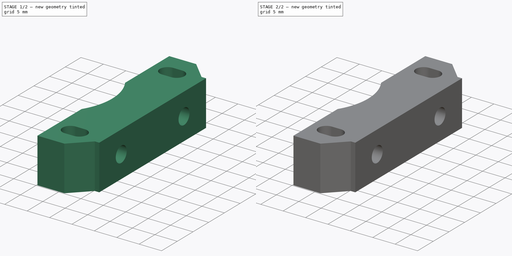
[diagram: build sequence overview — one tinted view per stage of 2, left to right]
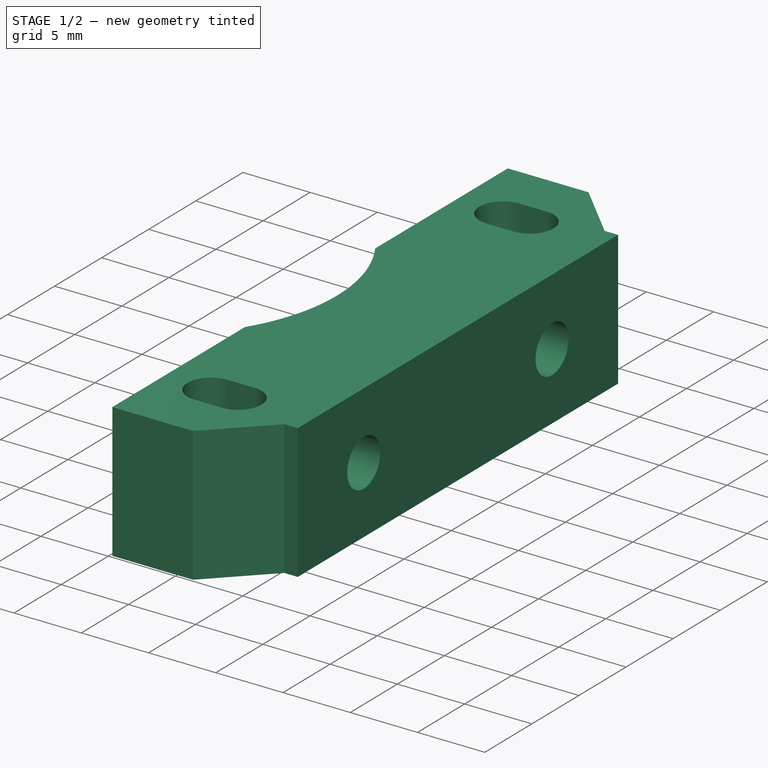
[diagram: stage 1 of 2 — iso view after this stage's code; geometry added in this stage tinted green]
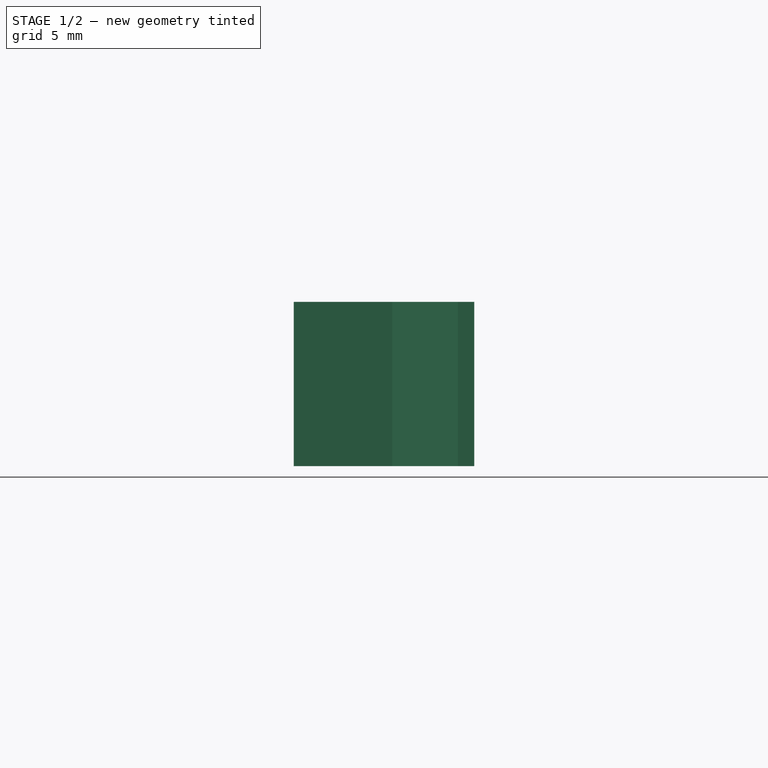
[diagram: stage 1 of 2 — front view after this stage's code; geometry added in this stage tinted green]
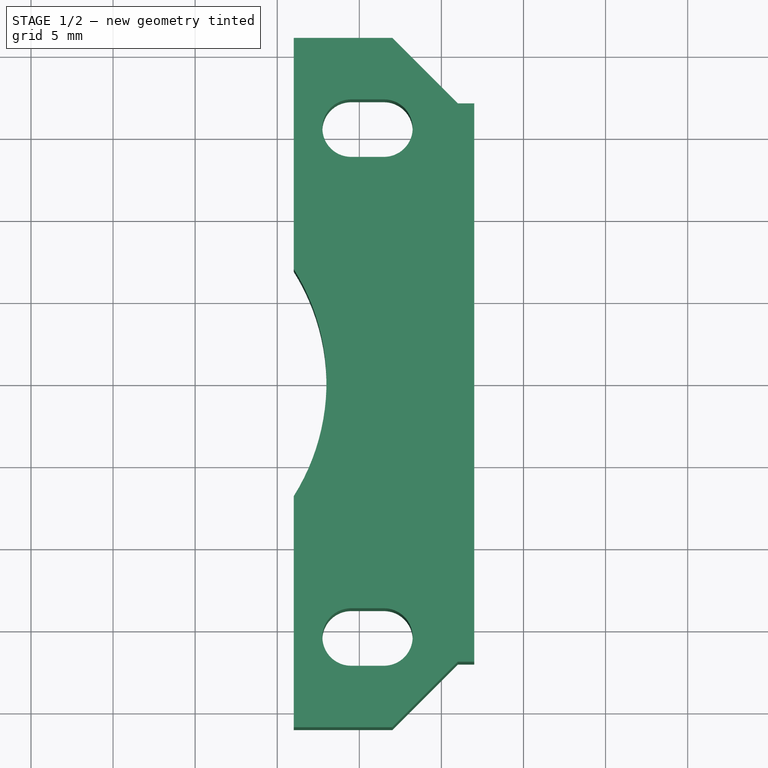
[diagram: stage 1 of 2 — top view after this stage's code; geometry added in this stage tinted green]
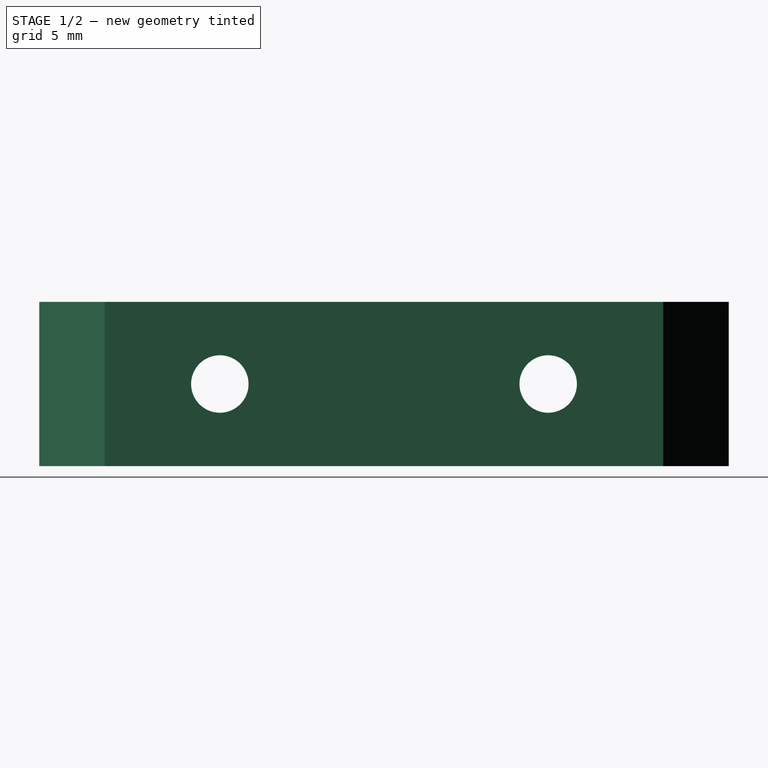
[diagram: stage 1 of 2 — right view after this stage's code; geometry added in this stage tinted green]
FCSTD DOCUMENT  (FreeCAD 0.20R24840 (Git))
Label: z stepper mount v2
License: Creative Commons Attribution
LicenseURL: http://creativecommons.org/licenses/by/4.0/
objects: Sketcher::SketchObject×3, PartDesign::Pocket×2, Part::Feature×1, PartDesign::SubShapeBinder×1, PartDesign::Pad×1, PartDesign::Body×1
note: 12 computed .brp shape members not serialized (recipe doc carries the construction recipe); baked Part::Feature solids carry a one-line shape summary decoded from their .brp

FEATURE [Part::Feature] Part__Feature  label="42-34 motor"
  shape: bbox 50.7 x 42 x 53.75 mm, 52 faces (baked)
FEATURE [PartDesign::SubShapeBinder] Binder
  BindMode = 0
  ClaimChildren = false
  Context = -> Body [Binder.]
  Fuse = false
  MakeFace = true
  PartialLoad = false
  Relative = true
  Support = -> [Part__Feature]
  _Version = 2
FEATURE [Sketcher::SketchObject] Sketch
  ExternalGeometry = -> [Binder]
  FullyConstrained = true
  MapMode = 5
  Support = -> [Binder]
  sketch-geometry (26):
    g0: LineSegment StartX=11.007 StartY=21 StartZ=0 EndX=17.007 EndY=21 EndZ=0
    g1: LineSegment StartX=17.007 StartY=21 StartZ=0 EndX=21 EndY=17.007 EndZ=0
    g2: LineSegment StartX=21 StartY=-17.007 StartZ=0 EndX=17.007 EndY=-21 EndZ=0
    g3: LineSegment StartX=17.007 StartY=-21 StartZ=0 EndX=11.007 EndY=-21 EndZ=0
    g4: LineSegment StartX=21 StartY=17.007 StartZ=0 EndX=22 EndY=17.007 EndZ=0
    g5: LineSegment StartX=22 StartY=17.007 StartZ=0 EndX=22 EndY=-17.007 EndZ=0
    g6: LineSegment StartX=22 StartY=-17.007 StartZ=0 EndX=21 EndY=-17.007 EndZ=0
    g7: LineSegment StartX=15.5 StartY=15.5 StartZ=0 EndX=16.5 EndY=15.5 EndZ=0
    g8: LineSegment StartX=15.5 StartY=15.5 StartZ=0 EndX=14.5 EndY=15.5 EndZ=0
    g9: ArcOfCircle CenterX=16.5 CenterY=15.5 CenterZ=0 NormalX=0 NormalY=0 NormalZ=1 AngleXU=0 Radius=1.75 StartAngle=4.71239 EndAngle=7.85398
    g10: LineSegment StartX=16.5 StartY=17.25 StartZ=0 EndX=14.5 EndY=17.25 EndZ=0
    g11: LineSegment StartX=16.5 StartY=13.75 StartZ=0 EndX=14.5 EndY=13.75 EndZ=0
    g12: LineSegment StartX=16.5 StartY=17.25 StartZ=0 EndX=16.5 EndY=13.75 EndZ=0
    g13: ArcOfCircle CenterX=14.5 CenterY=15.5 CenterZ=0 NormalX=0 NormalY=0 NormalZ=1 AngleXU=0 Radius=1.75 StartAngle=1.5708 EndAngle=4.71239
    g14: LineSegment StartX=14.5 StartY=17.25 StartZ=0 EndX=14.5 EndY=13.75 EndZ=0
    g15: LineSegment StartX=15.5 StartY=-15.5 StartZ=0 EndX=16.5 EndY=-15.5 EndZ=0
    g16: LineSegment StartX=15.5 StartY=-15.5 StartZ=0 EndX=14.5 EndY=-15.5 EndZ=0
    g17: ArcOfCircle CenterX=16.5 CenterY=-15.5 CenterZ=0 NormalX=0 NormalY=0 NormalZ=1 AngleXU=0 Radius=1.75 StartAngle=4.71239 EndAngle=7.85398
    g18: ArcOfCircle CenterX=14.5 CenterY=-15.5 CenterZ=0 NormalX=0 NormalY=0 NormalZ=1 AngleXU=0 Radius=1.75 StartAngle=1.5708 EndAngle=4.71239
    g19: LineSegment StartX=16.5 StartY=-13.75 StartZ=0 EndX=14.5 EndY=-13.75 EndZ=0
    g20: LineSegment StartX=16.5 StartY=-17.25 StartZ=0 EndX=14.5 EndY=-17.25 EndZ=0
    g21: LineSegment StartX=16.5 StartY=-13.75 StartZ=0 EndX=16.5 EndY=-17.25 EndZ=0
    g22: LineSegment StartX=14.5 StartY=-13.75 StartZ=0 EndX=14.5 EndY=-17.25 EndZ=0
    g23: ArcOfCircle CenterX=0 CenterY=0 CenterZ=0 NormalX=0 NormalY=0 NormalZ=1 AngleXU=0 Radius=13 StartAngle=5.72213 EndAngle=6.84425
    g24: LineSegment StartX=11.007 StartY=21 StartZ=0 EndX=11.007 EndY=6.91709 EndZ=0
    g25: LineSegment StartX=11.007 StartY=-6.91709 StartZ=0 EndX=11.007 EndY=-21 EndZ=0
  constraints (70):
    c: PointOnObject(g0,g-4)
    c: Coincident(g0,g-4)
    c: Coincident(g1,g0)
    c: Coincident(g1,g-3)
    c: Coincident(g2,g-5)
    c: Coincident(g3,g2)
    c: PointOnObject(g3,g-5)
    c: Coincident(g4,g1)
    c: Horizontal(g4)
    c: Coincident(g5,g4)
    c: Vertical(g5)
    c: Coincident(g6,g5)
    c: Coincident(g6,g2)
    c: Horizontal(g6)
    c: Distance(g4) = 1
    c: Coincident(g2,g-3)
    c: Coincident(g7,g-9)
    c: Horizontal(g7)
    c: Coincident(g8,g7)
    c: Horizontal(g8)
    c: Equal(g8,g7)
    c: DistanceX(g7,g7) = 1
    c: Coincident(g9,g7)
    c: Radius(g9) = 1.75
    c: Coincident(g10,g9)
    c: Horizontal(g10)
    c: Coincident(g11,g9)
    c: Coincident(g12,g9)
    c: Coincident(g12,g9)
    c: PointOnObject(g9,g12)
    c: Vertical(g12)
    c: Coincident(g13,g8)
    c: Coincident(g13,g10)
    c: Coincident(g13,g11)
    c: Coincident(g14,g10)
    c: Coincident(g14,g11)
    c: Coincident(g15,g-10)
    c: Coincident(g16,g15)
    c: Horizontal(g16)
    c: Equal(g15,g16)
    c: Equal(g16,g7)
    c: Horizontal(g15)
    c: Coincident(g17,g15)
    c: Coincident(g18,g16)
    c: Equal(g17,g9)
    c: Coincident(g19,g17)
    c: Coincident(g19,g18)
    c: Horizontal(g19)
    c: Coincident(g20,g17)
    c: Coincident(g20,g18)
    c: Coincident(g21,g17)
    c: Coincident(g21,g17)
    c: Vertical(g21)
    c: Coincident(g22,g18)
    c: Coincident(g22,g18)
    c: PointOnObject(g17,g21)
    c: PointOnObject(g18,g22)
    c: Vertical(g22)
    c: PointOnObject(g13,g14)
    c: Vertical(g14)
    c: Coincident(g23,g-1)
    c: Coincident(g24,g0)
    c: Coincident(g24,g23)
    c: Coincident(g25,g23)
    c: Coincident(g25,g3)
    c: Equal(g25,g24)
    c: Vertical(g24)
    c: Vertical(g25)
    c: Distance(g3) = 6
    c: Radius(g23) = 13
FEATURE [PartDesign::Pad] Pad
  Direction = (0,0,1)
  Length = 10
  Length2 = 100
  Profile = -> Sketch
  Type = 0
FEATURE [Sketcher::SketchObject] Sketch001
  ExternalGeometry = -> [Pad]
  FullyConstrained = true
  MapMode = 5
  Placement = pos=(11.007,0,0) rot=(0.57735,-0.57735,-0.57735;2.0944rad)
  Support = -> [Pad]
  sketch-geometry (6):
    g0: Circle CenterX=-10 CenterY=5 CenterZ=0 NormalX=0 NormalY=0 NormalZ=1 AngleXU=0 Radius=1.75
    g1: Circle CenterX=10 CenterY=5 CenterZ=0 NormalX=0 NormalY=0 NormalZ=1 AngleXU=0 Radius=1.75
    g2: LineSegment StartX=10 StartY=5 StartZ=0 EndX=0 EndY=5 EndZ=0
    g3: LineSegment StartX=0 StartY=5 StartZ=0 EndX=-10 EndY=5 EndZ=0
    g4: LineSegment StartX=10 StartY=5 StartZ=0 EndX=10 EndY=0 EndZ=0
    g5: LineSegment StartX=10 StartY=5 StartZ=0 EndX=10 EndY=10 EndZ=0
  constraints (17):
    c: Radius(g1) = 1.75
    c: Equal(g0,g1)
    c: Coincident(g2,g1)
    c: PointOnObject(g2,g-2)
    c: Horizontal(g2)
    c: Coincident(g3,g2)
    c: Coincident(g3,g0)
    c: Horizontal(g3)
    c: Equal(g3,g2)
    c: DistanceX(g0,g1) = 20
    c: Coincident(g4,g1)
    c: PointOnObject(g4,g-1)
    c: Vertical(g4)
    c: Coincident(g5,g1)
    c: PointOnObject(g5,g-3)
    c: Vertical(g5)
    c: Equal(g5,g4)
FEATURE [PartDesign::Pocket] Pocket
  BaseFeature = -> Pad
  Length = 5
  Length2 = 100
  Profile = -> Sketch001
  Type = 1
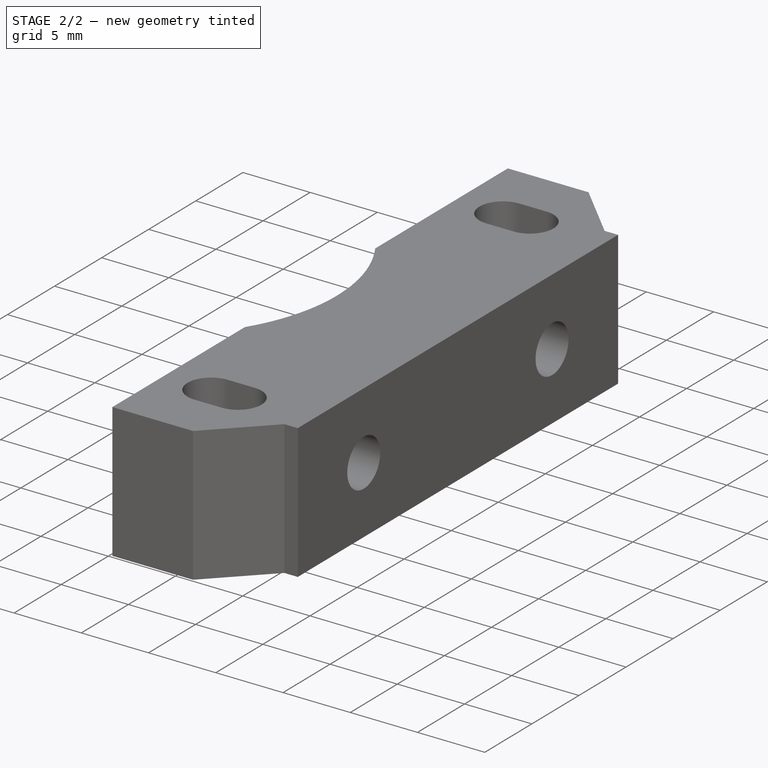
[diagram: stage 2 of 2 — iso view after this stage's code; geometry added in this stage tinted green]
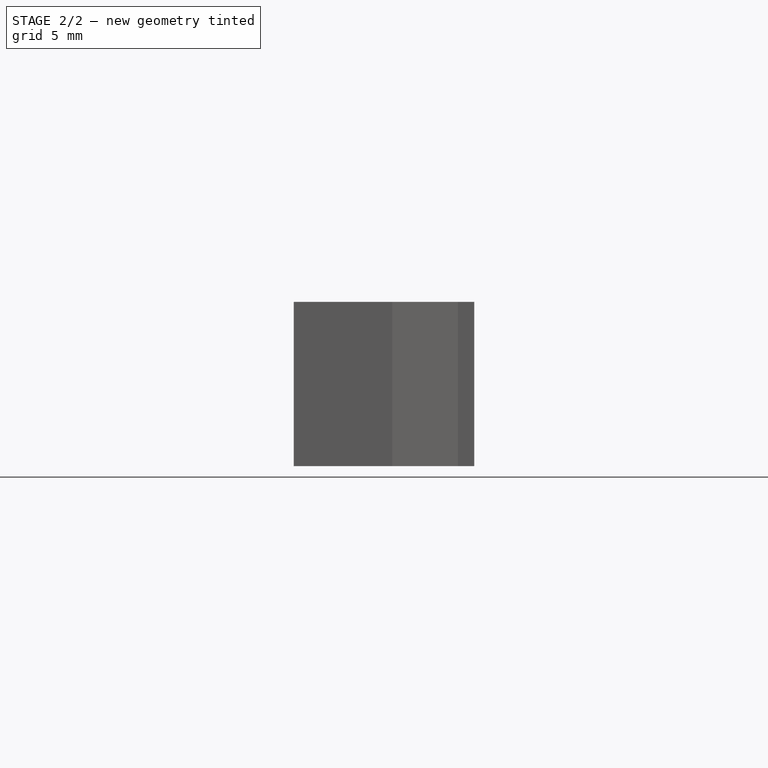
[diagram: stage 2 of 2 — front view after this stage's code; geometry added in this stage tinted green]
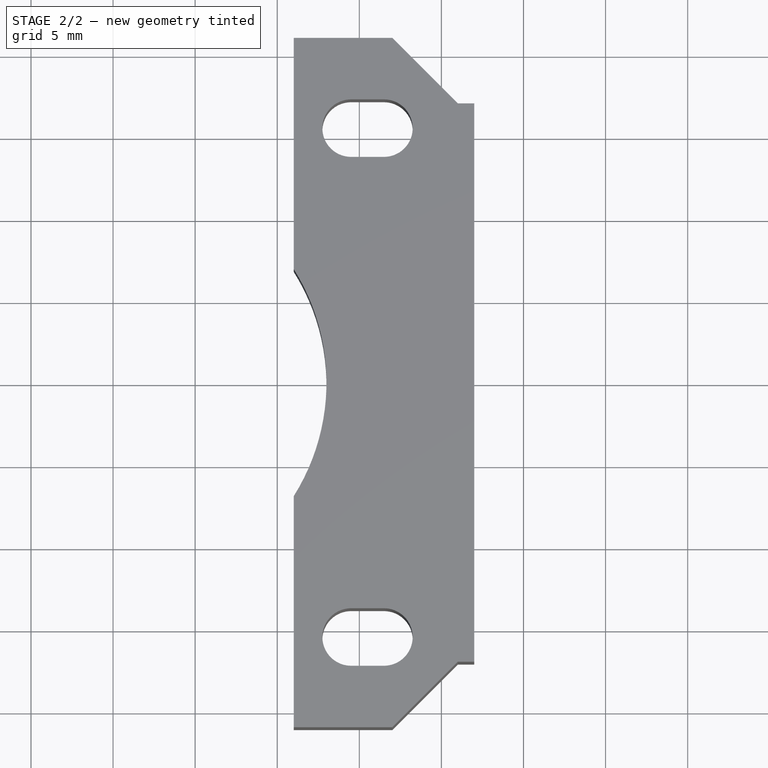
[diagram: stage 2 of 2 — top view after this stage's code; geometry added in this stage tinted green]
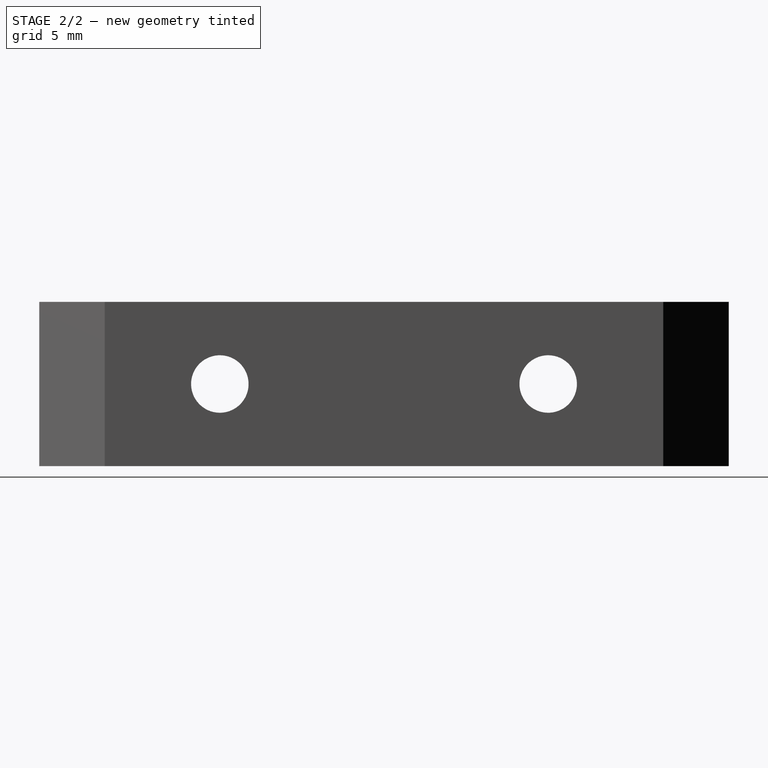
[diagram: stage 2 of 2 — right view after this stage's code; geometry added in this stage tinted green]
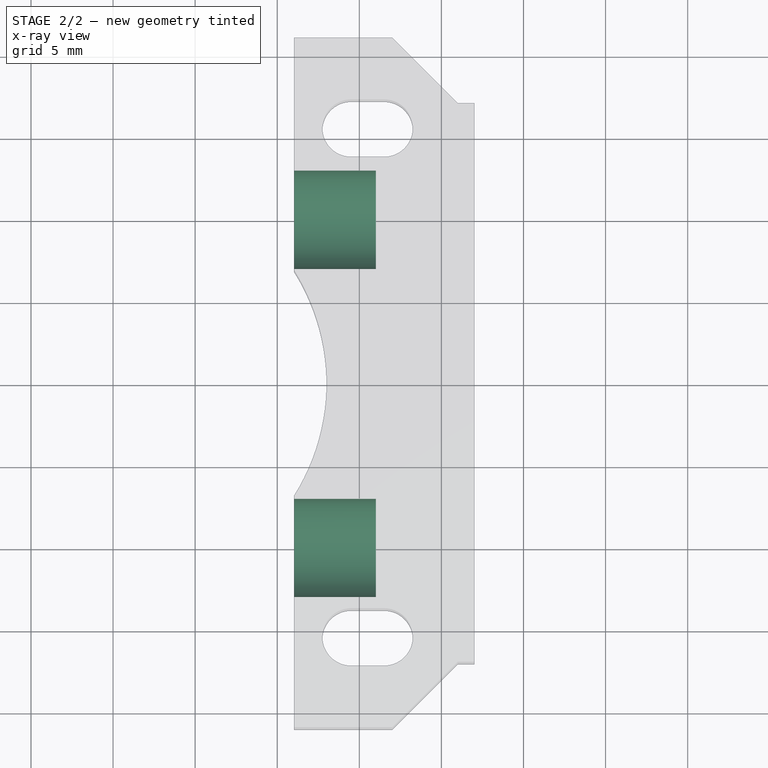
[diagram: stage 2 of 2 — x-ray composite at the top view; earlier geometry ghosted, this stage's added geometry solid]
FEATURE [Sketcher::SketchObject] Sketch002
  ExternalGeometry = -> [Pocket]
  FullyConstrained = true
  MapMode = 5
  Placement = pos=(11.007,0,0) rot=(0.57735,-0.57735,-0.57735;2.0944rad)
  Support = -> [Pocket]
  sketch-geometry (2):
    g0: Circle CenterX=10 CenterY=5 CenterZ=0 NormalX=0 NormalY=0 NormalZ=1 AngleXU=0 Radius=3
    g1: Circle CenterX=-10 CenterY=5 CenterZ=0 NormalX=0 NormalY=0 NormalZ=1 AngleXU=0 Radius=3
  constraints (4):
    c: Coincident(g0,g-3)
    c: Coincident(g1,g-4)
    c: Radius(g0) = 3
    c: Equal(g0,g1)
FEATURE [PartDesign::Pocket] Pocket001
  BaseFeature = -> Pocket
  Length = 5
  Length2 = 100
  Profile = -> Sketch002
  Type = 0
FEATURE [PartDesign::Body] Body
  Group = -> [Binder,Sketch,Pad,Sketch001,Pocket,Sketch002,Pocket001]
  Origin = -> Origin
  Tip = -> Pocket001
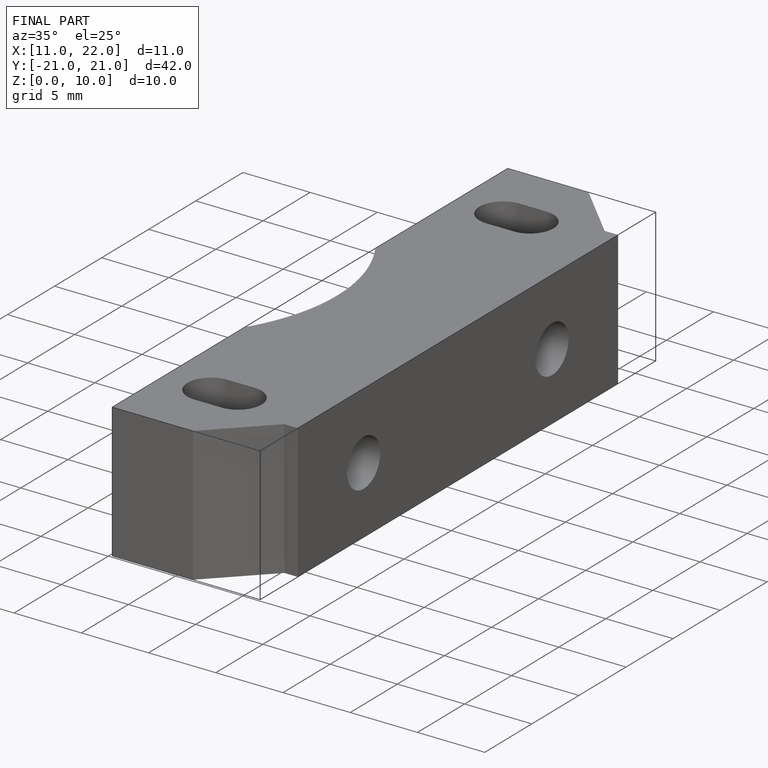
[diagram: finished part — iso view with bounding-box wireframe]
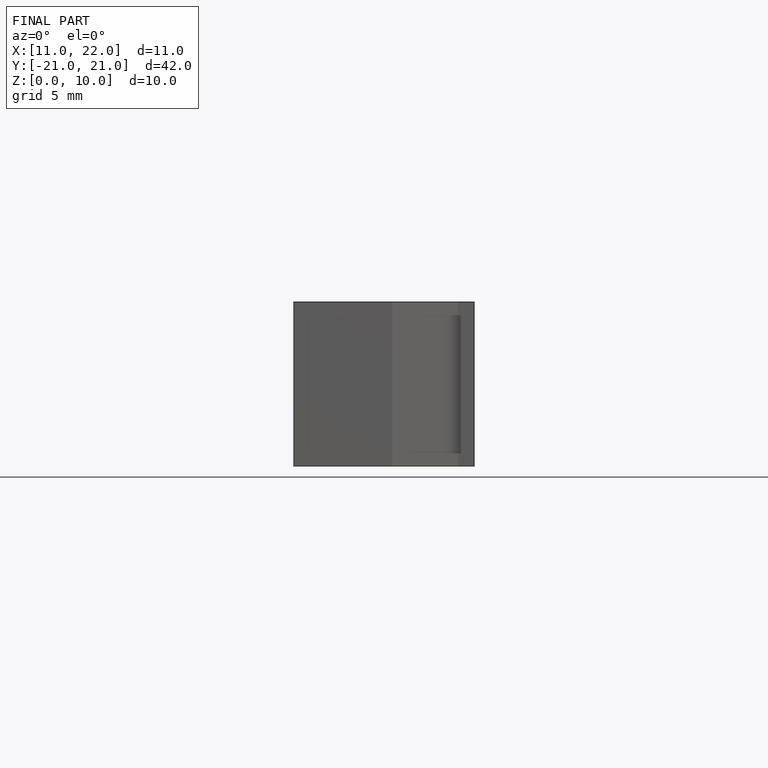
[diagram: finished part — front view with bounding-box wireframe]
